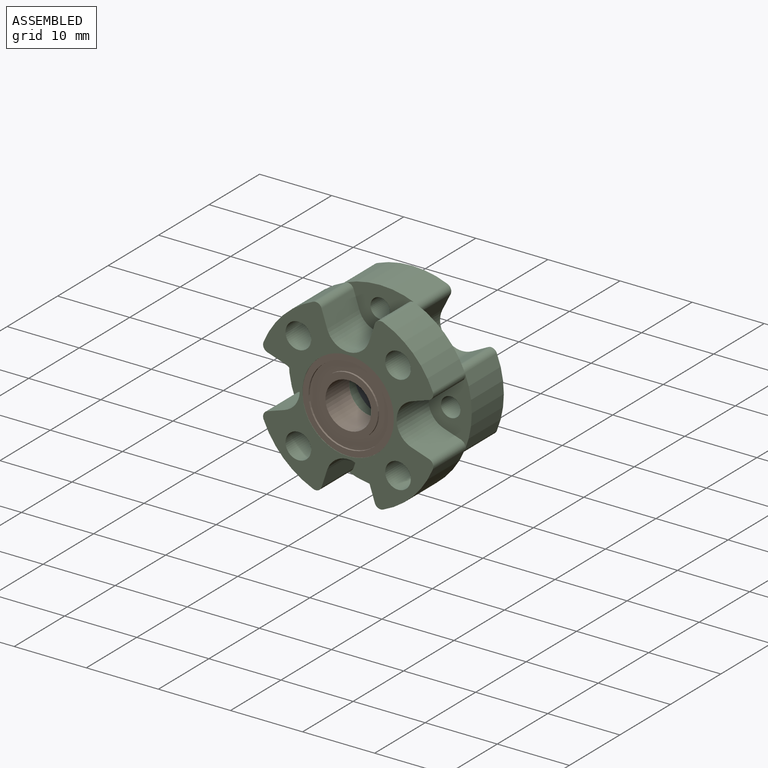
[diagram: assembled view]
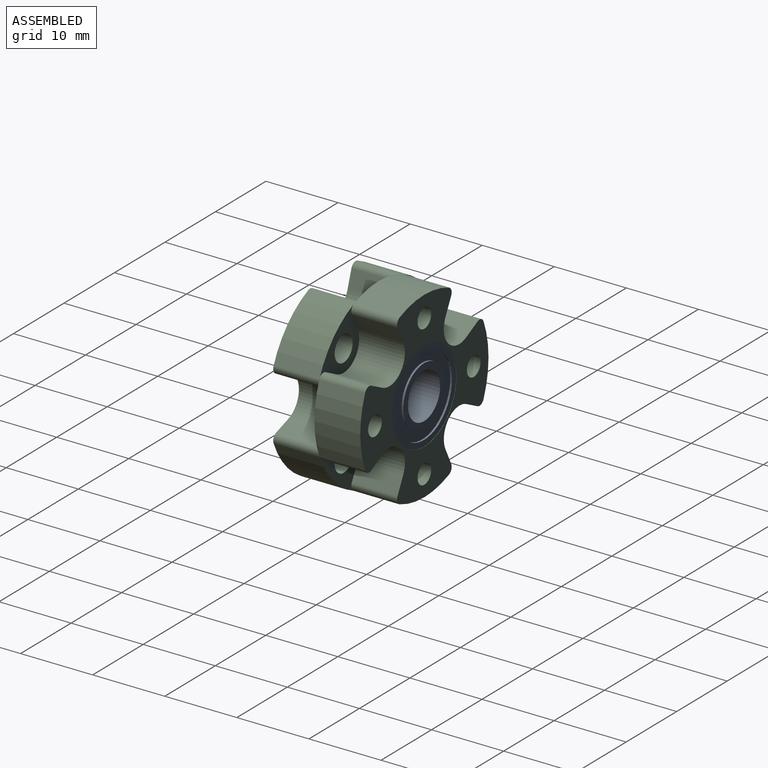
[diagram: assembled view, second angle]
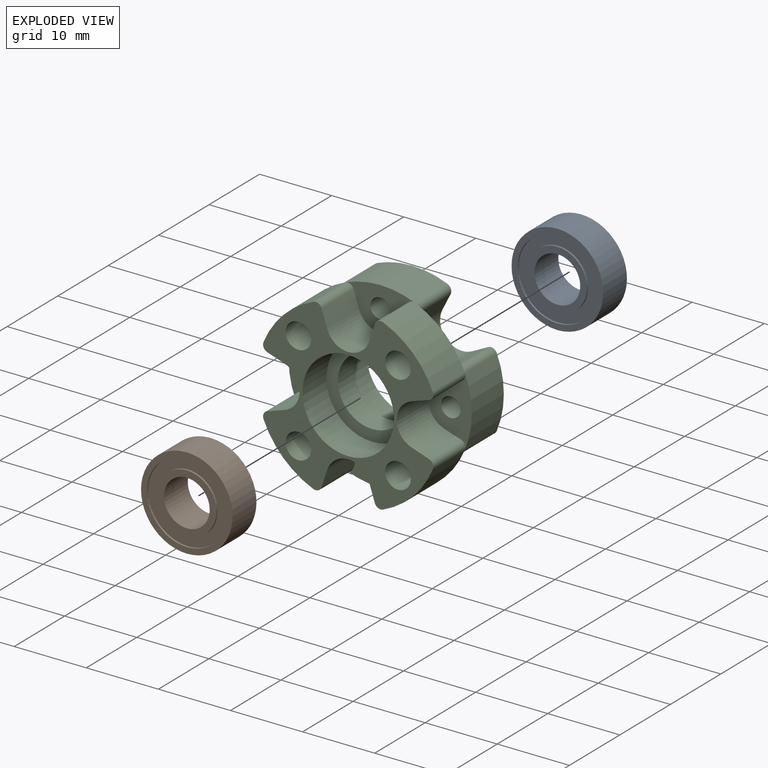
[diagram: exploded view]
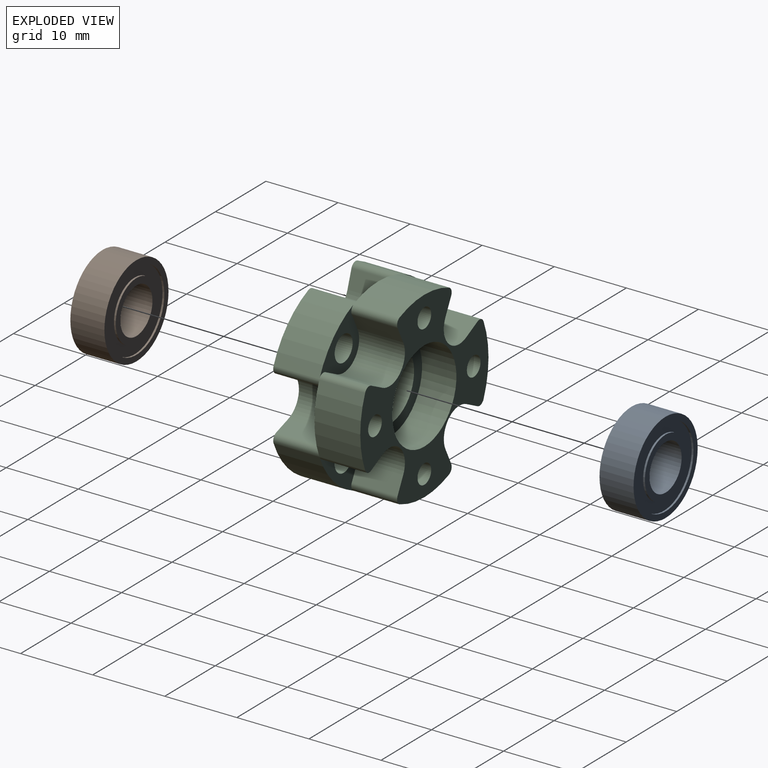
[diagram: exploded view, second angle]
ASSEMBLY  parts=3 mates=2
PART A: 12 faces, bbox 12.7x4.7x12.7 mm
  f0: cylinder r=4.1mm len=8.2mm, axis (0,-1,0), area 6.5mm2, adj f6,f11
  f1: cylinder r=5.52mm len=11.05mm, axis (0,-1,0), area 8.8mm2, adj f9,f11
  f2: cylinder r=4.1mm len=8.2mm, axis (0,1,0), area 6.5mm2, adj f7,f10
  f3: cylinder r=5.52mm len=11.05mm, axis (0,1,0), area 8.8mm2, adj f8,f10
  f4: cylinder r=3.17mm len=6.35mm, axis (0,-1,0), area 94.2mm2, adj f6,f7
  f5: cylinder r=6.35mm len=12.7mm, axis (0,-1,0), area 188.5mm2, adj f8,f9
  f6: plane 8.2x8.2mm, normal (0,-1,0), area 21.2mm2, adj f0,f4
  f7: plane 8.2x8.2mm, normal (0,1,0), area 21.2mm2, adj f2,f4
  f8: plane 12.7x12.7mm, normal (0,1,0), area 30.8mm2, adj f3,f5
  f9: plane 12.7x12.7mm, normal (0,-1,0), area 30.8mm2, adj f1,f5
  f10: plane 11.05x11.05mm, normal (0,1,0), area 43mm2, adj f2,f3
  f11: plane 11.05x11.05mm, normal (0,-1,0), area 43mm2, adj f0,f1
PART B: same geometry as A
PART C: 64 faces, bbox 25.4x12.7x25.4 mm
  f0: cylinder r=0.86mm len=6.35mm, axis (0,-1,0), area 9mm2, adj f13,f20,f22,f23
  f1: cylinder r=0.86mm len=6.35mm, axis (0,-1,0), area 9mm2, adj f13,f20,f24,f26
  f2: cylinder r=0.86mm len=6.35mm, axis (0,-1,0), area 9mm2, adj f13,f19,f44,f47
  f3: cylinder r=0.86mm len=6.35mm, axis (0,-1,0), area 9mm2, adj f13,f19,f44,f45
  f4: cylinder r=1.78mm len=6.35mm, axis (0,1,0), area 70.9mm2, adj f19,f23
  f5: cylinder r=1.78mm len=6.35mm, axis (0,1,0), area 70.9mm2, adj f19,f26
  f6: cylinder r=1.78mm len=6.35mm, axis (0,1,0), area 70.9mm2, adj f19,f30
  f7: cylinder r=1.78mm len=6.35mm, axis (0,1,0), area 70.9mm2, adj f19,f34
  f8: cylinder r=3.06mm len=6.35mm, axis (0,-1,0), area 48.7mm2, adj f19,f37,f38,f39
  f9: cylinder r=6.35mm len=12.7mm, axis (0,-1,0), area 190mm2, adj f19,f36
  f10: cylinder r=6.35mm len=12.7mm, axis (0,1,0), area 190mm2, adj f20,f35
  f11: cylinder r=3.06mm len=6.35mm, axis (0,1,0), area 48.7mm2, adj f20,f24,f25,f26
  f12: cylinder r=3.06mm len=6.35mm, axis (0,1,0), area 48.7mm2, adj f20,f21,f22,f23
  f13: cylinder r=12.7mm len=25.4mm, axis (0,-1,0), area 508.5mm2, adj f0,f1,f2,f3,f19,f20,f23,f26
  f14: cylinder r=4.76mm len=9.53mm, axis (0,1,0), area 95mm2, adj f35,f36
  f15: cylinder r=1.35mm len=6.35mm, axis (0,1,0), area 54mm2, adj f20,f37
  f16: cylinder r=1.35mm len=6.35mm, axis (0,1,0), area 54mm2, adj f20,f40
  f17: cylinder r=1.35mm len=6.35mm, axis (0,1,0), area 54mm2, adj f20,f44
  f18: cylinder r=1.35mm len=6.35mm, axis (0,1,0), area 54mm2, adj f20,f48
  f19: plane 23.61x23.61mm, normal (0,-1,0), area 200.3mm2, adj f2,f3,f4,f5,f6,f7,f8,f9
  f20: plane 25.4x25.4mm, normal (0,1,0), area 217mm2, adj f0,f1,f10,f11,f12,f13,f15,f16
  f21: plane 6.35x2.25mm, normal (0.89,0,0.45), area 16mm2, adj f12,f20,f23,f62
  f22: plane 6.35x2.25mm, normal (-0.45,0,-0.89), area 16mm2, adj f0,f12,f20,f23
  f23: plane 7.87x7.87mm, normal (0,1,0), area 25.1mm2, adj f0,f4,f12,f13,f21,f22,f62
  f24: plane 6.35x2.25mm, normal (0.45,0,-0.89), area 16mm2, adj f1,f11,f20,f26
  f25: plane 6.35x2.25mm, normal (-0.89,0,0.45), area 16mm2, adj f11,f20,f26,f61
  f26: plane 7.87x7.87mm, normal (0,1,0), area 25.1mm2, adj f1,f5,f11,f13,f24,f25,f61
  f27: plane 6.35x2.25mm, normal (-0.89,0,-0.45), area 16mm2, adj f20,f29,f30,f59
  f28: plane 6.35x2.25mm, normal (0.45,0,0.89), area 16mm2, adj f20,f29,f30,f60
  f29: cylinder r=3.06mm len=6.35mm, axis (0,1,0), area 48.7mm2, adj f20,f27,f28,f30
  f30: plane 7.87x7.87mm, normal (0,1,0), area 25.1mm2, adj f6,f13,f27,f28,f29,f59,f60
  f31: plane 6.35x2.25mm, normal (-0.45,0,0.89), area 16mm2, adj f20,f33,f34,f63
  f32: plane 6.35x2.25mm, normal (0.89,0,-0.45), area 16mm2, adj f20,f33,f34,f58
  f33: cylinder r=3.06mm len=6.35mm, axis (0,1,0), area 48.7mm2, adj f20,f31,f32,f34
  f34: plane 7.87x7.87mm, normal (0,1,0), area 25.1mm2, adj f7,f13,f31,f32,f33,f58,f63
  f35: plane 12.7x12.7mm, normal (0,1,0), area 55.4mm2, adj f10,f14
  f36: plane 12.7x12.7mm, normal (0,-1,0), area 55.4mm2, adj f9,f14
  f37: plane 9.69x5.98mm, normal (0,-1,0), area 29.3mm2, adj f8,f13,f15,f38,f39,f52,f53
  f38: plane 6.35x2.39mm, normal (-0.95,0,0.31), area 16mm2, adj f8,f19,f37,f53
  f39: plane 6.35x2.39mm, normal (0.95,0,0.31), area 16mm2, adj f8,f19,f37,f52
  f40: plane 9.69x5.98mm, normal (0,-1,0), area 29.3mm2, adj f13,f16,f41,f42,f43,f54,f55
  f41: plane 6.35x2.39mm, normal (0.31,0,0.95), area 16mm2, adj f19,f40,f42,f55
  f42: cylinder r=3.06mm len=6.35mm, axis (0,-1,0), area 48.7mm2, adj f19,f40,f41,f43
  f43: plane 6.35x2.39mm, normal (0.31,0,-0.95), area 16mm2, adj f19,f40,f42,f54
  f44: plane 9.69x5.98mm, normal (0,-1,0), area 29.3mm2, adj f2,f3,f13,f17,f45,f46,f47
  f45: plane 6.35x2.39mm, normal (0.95,0,-0.31), area 16mm2, adj f3,f19,f44,f46
  f46: cylinder r=3.06mm len=6.35mm, axis (0,-1,0), area 48.7mm2, adj f19,f44,f45,f47
  f47: plane 6.35x2.39mm, normal (-0.95,0,-0.31), area 16mm2, adj f2,f19,f44,f46
  f48: plane 9.69x5.98mm, normal (0,-1,0), area 29.3mm2, adj f13,f18,f49,f50,f51,f56,f57
  f49: plane 6.35x2.39mm, normal (-0.31,0,-0.95), area 16mm2, adj f19,f48,f50,f57
  f50: cylinder r=3.06mm len=6.35mm, axis (0,-1,0), area 48.7mm2, adj f19,f48,f49,f51
  f51: plane 6.35x2.39mm, normal (-0.31,0,0.95), area 16mm2, adj f19,f48,f50,f56
  f52: cylinder r=0.86mm len=6.35mm, axis (0,-1,0), area 9mm2, adj f13,f19,f37,f39
  f53: cylinder r=0.86mm len=6.35mm, axis (0,-1,0), area 9mm2, adj f13,f19,f37,f38
  f54: cylinder r=0.86mm len=6.35mm, axis (0,-1,0), area 9mm2, adj f13,f19,f40,f43
  f55: cylinder r=0.86mm len=6.35mm, axis (0,-1,0), area 9mm2, adj f13,f19,f40,f41
  f56: cylinder r=0.86mm len=6.35mm, axis (0,-1,0), area 9mm2, adj f13,f19,f48,f51
  f57: cylinder r=0.86mm len=6.35mm, axis (0,-1,0), area 9mm2, adj f13,f19,f48,f49
  f58: cylinder r=0.86mm len=6.35mm, axis (0,-1,0), area 9mm2, adj f13,f20,f32,f34
  f59: cylinder r=0.86mm len=6.35mm, axis (0,-1,0), area 9mm2, adj f13,f20,f27,f30
  f60: cylinder r=0.86mm len=6.35mm, axis (0,-1,0), area 9mm2, adj f13,f20,f28,f30
  f61: cylinder r=0.86mm len=6.35mm, axis (0,-1,0), area 9mm2, adj f13,f20,f25,f26
  f62: cylinder r=0.86mm len=6.35mm, axis (0,-1,0), area 9mm2, adj f13,f20,f21,f23
  f63: cylinder r=0.86mm len=6.35mm, axis (0,-1,0), area 9mm2, adj f13,f20,f31,f34
PLACE A t=(-29.73,-0.57,19.43)mm
PLACE B t=(-29.73,-8.47,19.43)mm
PLACE C t=(-29.73,-8.51,19.43)mm
MATE fastened C.f9 <-> A.f0  axis (0,1,0) through (-29.73,4.19,19.43)mm
MATE fastened B.f0 <-> C.f9  axis (0,-1,0) through (-29.73,-8.47,19.43)mm
